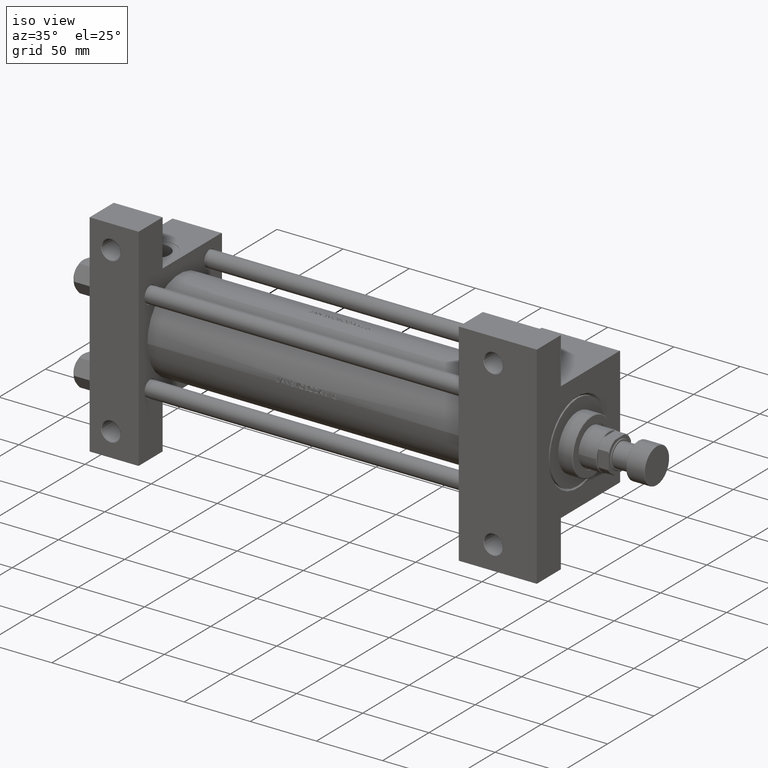
[diagram: clean part render]
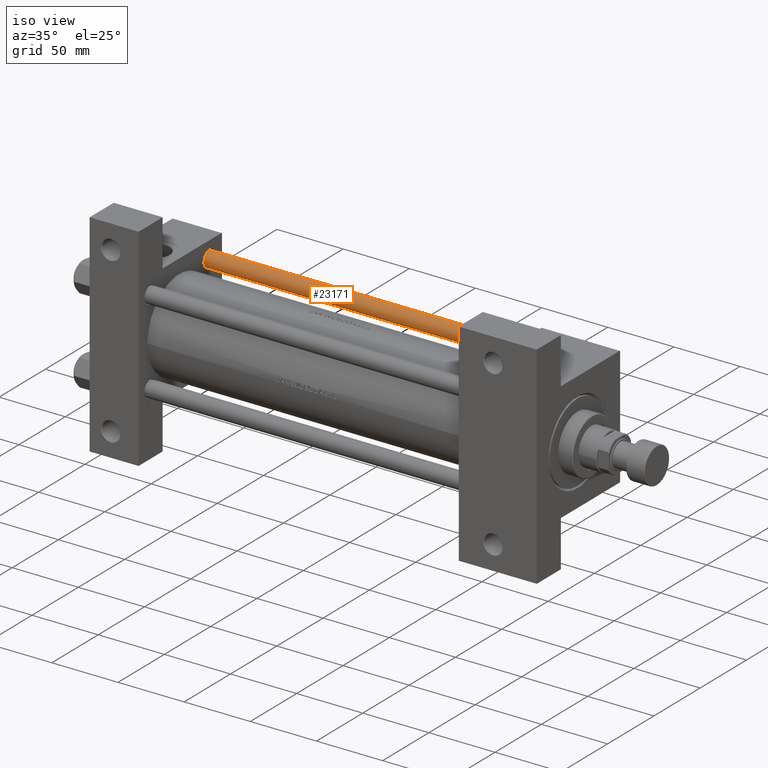
[diagram: same view with one face highlighted and labeled with its STEP entity id]
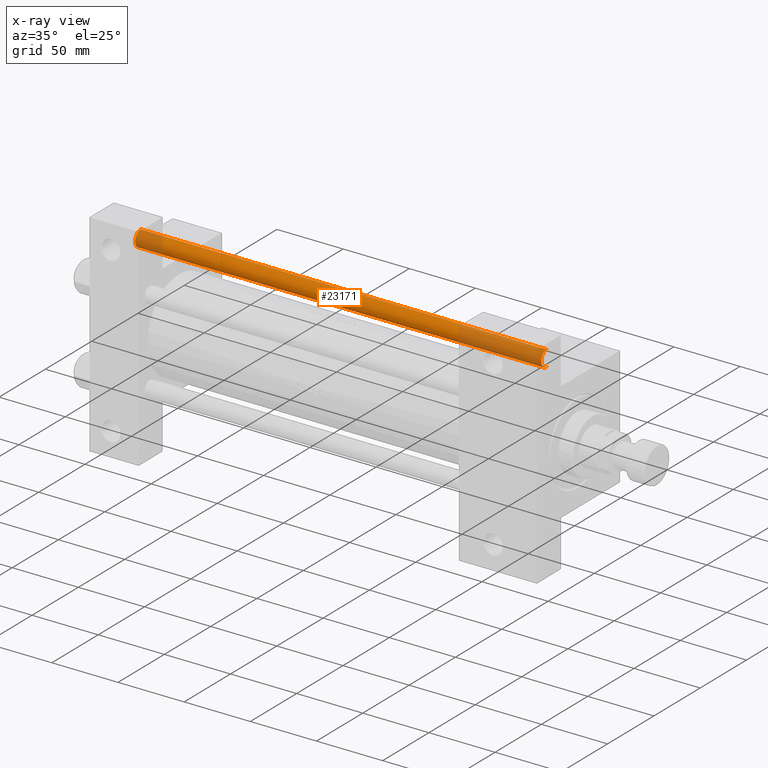
[diagram: x-ray of the same camera — body ghosted, the highlighted face saturated]
A machine part, iso view. The second image highlights one B-rep face of the part: STEP entity #23171.
The next image is the same camera in x-ray: the body ghosted, the highlighted face saturated — about 27% of this face is hidden behind the body in this view.
In plain terms, the highlighted cylindrical surface (edge-blend (fillet) strip) has radius 6 mm, axis along (-1, -0, -0).
Its self-contained STEP definition (entity closure, byte-faithful):
#1765 = DIRECTION ( 'NONE',  ( -0.000000000000000000, -0.000000000000000000, -1.000000000000000000 ) ) ;
#1901 = ORIENTED_EDGE ( 'NONE', *, *, #33996, .T. ) ;
#2011 = AXIS2_PLACEMENT_3D ( 'NONE', #32028, #13750, #48210 ) ;
#5588 = LINE ( 'NONE', #6339, #22509 ) ;
#6339 = CARTESIAN_POINT ( 'NONE',  ( -6.000000000000000888, 0.000000000000000000, 308.0000000000000000 ) ) ;
#12708 = VERTEX_POINT ( 'NONE', #13290 ) ;
#13097 = ORIENTED_EDGE ( 'NONE', *, *, #38886, .F. ) ;
#13287 = CARTESIAN_POINT ( 'NONE',  ( 0.000000000000000000, 0.000000000000000000, 308.0000000000000000 ) ) ;
#13290 = CARTESIAN_POINT ( 'NONE',  ( -6.000000000000000888, 0.000000000000000000, 307.4999999999999432 ) ) ;
#13540 = FACE_OUTER_BOUND ( 'NONE', #38283, .T. ) ;
#13750 = DIRECTION ( 'NONE',  ( 0.000000000000000000, 0.000000000000000000, -1.000000000000000000 ) ) ;
#15591 = CARTESIAN_POINT ( 'NONE',  ( -6.000000000000000888, 0.000000000000000000, 0.5000000000000559552 ) ) ;
#15598 = ORIENTED_EDGE ( 'NONE', *, *, #32570, .T. ) ;
#16369 = CARTESIAN_POINT ( 'NONE',  ( 0.000000000000000000, 0.000000000000000000, 0.5000000000000559552 ) ) ;
#16598 = DIRECTION ( 'NONE',  ( -1.000000000000000000, 0.000000000000000000, 0.000000000000000000 ) ) ;
#17355 = DIRECTION ( 'NONE',  ( -0.000000000000000000, -0.000000000000000000, -1.000000000000000000 ) ) ;
#17414 = AXIS2_PLACEMENT_3D ( 'NONE', #13287, #17355, #16598 ) ;
#17511 = CARTESIAN_POINT ( 'NONE',  ( 6.000000000000000888, 7.347880794884120722E-16, 308.0000000000000000 ) ) ;
#21172 = CYLINDRICAL_SURFACE ( 'NONE', #17414, 6.000000000000000888 ) ;
#22068 = DIRECTION ( 'NONE',  ( -0.000000000000000000, -0.000000000000000000, -1.000000000000000000 ) ) ;
#22509 = VECTOR ( 'NONE', #22068, 1000.000000000000000 ) ;
#23171 = ADVANCED_FACE ( 'NONE', ( #13540 ), #21172, .T. ) ;
#24078 = CIRCLE ( 'NONE', #31489, 6.000000000000000888 ) ;
#28243 = VERTEX_POINT ( 'NONE', #49353 ) ;
#31489 = AXIS2_PLACEMENT_3D ( 'NONE', #16369, #48011, #43973 ) ;
#31973 = LINE ( 'NONE', #17511, #36431 ) ;
#32028 = CARTESIAN_POINT ( 'NONE',  ( 0.000000000000000000, 0.000000000000000000, 307.4999999999999432 ) ) ;
#32570 = EDGE_CURVE ( 'NONE', #45198, #45320, #24078, .T. ) ;
#33996 = EDGE_CURVE ( 'NONE', #12708, #45198, #5588, .T. ) ;
#36431 = VECTOR ( 'NONE', #1765, 1000.000000000000000 ) ;
#37663 = CIRCLE ( 'NONE', #2011, 6.000000000000000888 ) ;
#38283 = EDGE_LOOP ( 'NONE', ( #13097, #45586, #1901, #15598 ) ) ;
#38886 = EDGE_CURVE ( 'NONE', #28243, #45320, #31973, .T. ) ;
#43710 = CARTESIAN_POINT ( 'NONE',  ( 6.000000000000000888, 7.347880794884120722E-16, 0.5000000000000559552 ) ) ;
#43973 = DIRECTION ( 'NONE',  ( 1.000000000000000000, 0.000000000000000000, 0.000000000000000000 ) ) ;
#45198 = VERTEX_POINT ( 'NONE', #15591 ) ;
#45320 = VERTEX_POINT ( 'NONE', #43710 ) ;
#45586 = ORIENTED_EDGE ( 'NONE', *, *, #47384, .T. ) ;
#47384 = EDGE_CURVE ( 'NONE', #28243, #12708, #37663, .T. ) ;
#48011 = DIRECTION ( 'NONE',  ( -0.000000000000000000, -0.000000000000000000, 1.000000000000000000 ) ) ;
#48210 = DIRECTION ( 'NONE',  ( 1.000000000000000000, 0.000000000000000000, 0.000000000000000000 ) ) ;
#49353 = CARTESIAN_POINT ( 'NONE',  ( 6.000000000000000888, 7.347880794884120722E-16, 307.4999999999999432 ) ) ;